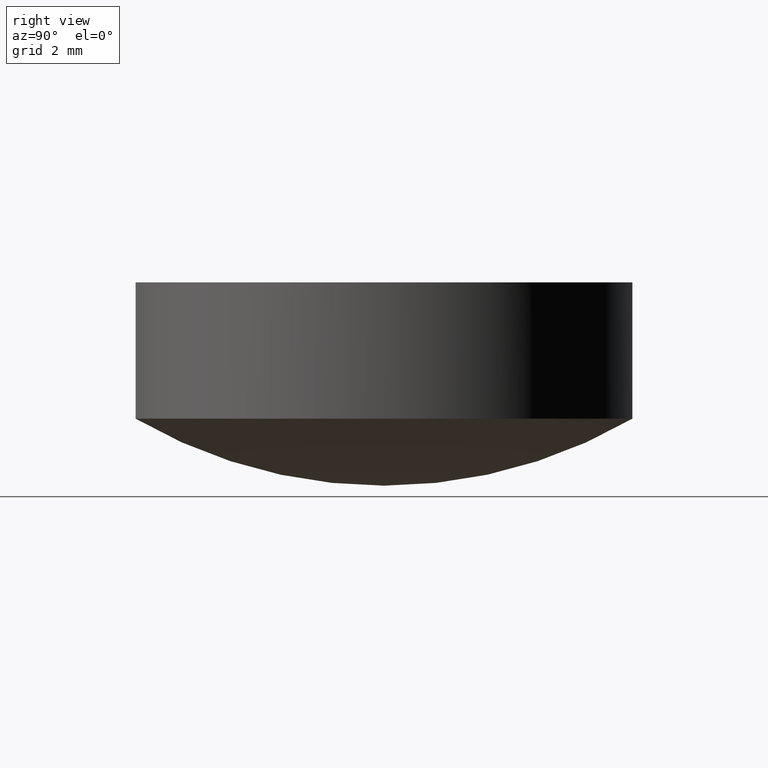
[diagram: clean part render]
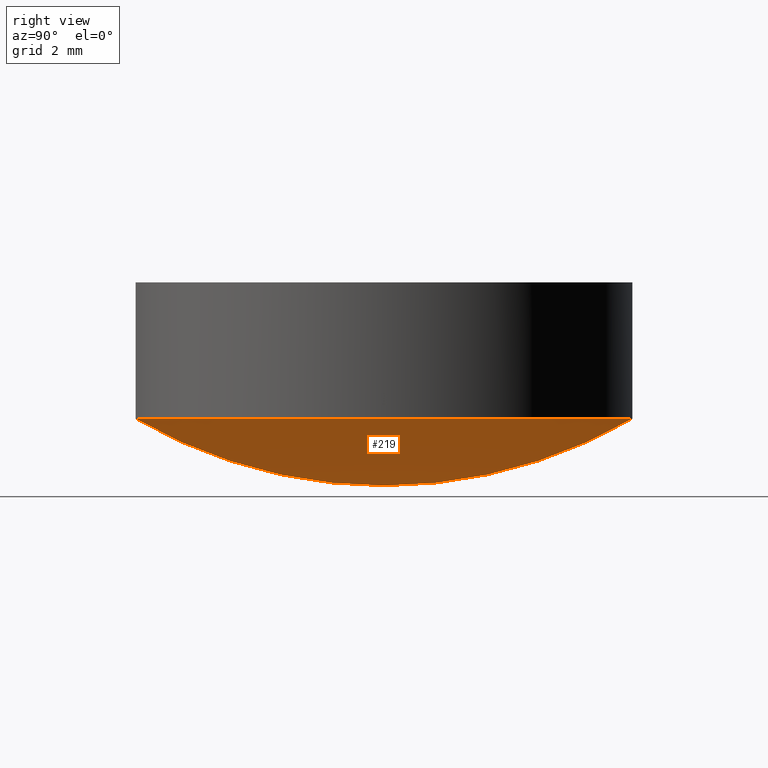
[diagram: same view with one face highlighted and labeled with its STEP entity id]
A machine part, right view. The second image highlights one B-rep face of the part: STEP entity #219.
In plain terms, the highlighted spherical surface has radius 12.63 mm.
Its self-contained STEP definition (entity closure, byte-faithful):
#29 = DIRECTION ( 'NONE',  ( 0.0000000000000000000, 0.0000000000000000000, 1.000000000000000000 ) ) ;
#30 = DIRECTION ( 'NONE',  ( -1.000000000000000000, 0.0000000000000000000, 0.0000000000000000000 ) ) ;
#31 = CARTESIAN_POINT ( 'NONE',  ( 0.0000000000000000000, 0.0000000000000000000, 11.63000000000000100 ) ) ;
#32 = DIRECTION ( 'NONE',  ( 1.000000000000000000, -1.224606353822377300E-016, -2.249491082733206400E-032 ) ) ;
#33 = AXIS2_PLACEMENT_3D ( 'NONE', #39, #32, #36 ) ;
#34 = CIRCLE ( 'NONE', #33, 12.63000000000000100 ) ;
#36 = DIRECTION ( 'NONE',  ( 1.224606353822377300E-016, 1.000000000000000000, 0.0000000000000000000 ) ) ;
#39 = CARTESIAN_POINT ( 'NONE',  ( 0.0000000000000000000, 0.0000000000000000000, 11.63000000000000100 ) ) ;
#41 = AXIS2_PLACEMENT_3D ( 'NONE', #31, #30, #29 ) ;
#42 = CIRCLE ( 'NONE', #41, 12.63000000000000300 ) ;
#43 = CARTESIAN_POINT ( 'NONE',  ( 0.0000000000000000000, 1.546677824877662800E-015, -0.9999999999999991100 ) ) ;
#75 = DIRECTION ( 'NONE',  ( 0.0000000000000000000, -1.000000000000000000, -1.373494438619799700E-016 ) ) ;
#76 = DIRECTION ( 'NONE',  ( 1.000000000000000000, 0.0000000000000000000, 0.0000000000000000000 ) ) ;
#77 = CARTESIAN_POINT ( 'NONE',  ( 0.0000000000000000000, 0.0000000000000000000, 11.63000000000000100 ) ) ;
#78 = AXIS2_PLACEMENT_3D ( 'NONE', #77, #76, #75 ) ;
#79 = SPHERICAL_SURFACE ( 'NONE', #78, 12.63000000000000100 ) ;
#80 = FACE_OUTER_BOUND ( 'NONE', #220, .T. ) ;
#84 = DIRECTION ( 'NONE',  ( 0.0000000000000000000, -1.836909530733566100E-016, 1.000000000000000000 ) ) ;
#85 = CARTESIAN_POINT ( 'NONE',  ( 0.0000000000000000000, 5.283296928876126500E-017, 0.7123812120041507200 ) ) ;
#88 = DIRECTION ( 'NONE',  ( 0.0000000000000000000, -1.000000000000000000, -1.878145495644179600E-016 ) ) ;
#168 = CARTESIAN_POINT ( 'NONE',  ( 0.0000000000000000000, -6.350000000000001400, 0.7123812120041489400 ) ) ;
#171 = AXIS2_PLACEMENT_3D ( 'NONE', #85, #84, #88 ) ;
#172 = CIRCLE ( 'NONE', #171, 6.350000000000004100 ) ;
#177 = VERTEX_POINT ( 'NONE', #178 ) ;
#178 = CARTESIAN_POINT ( 'NONE',  ( 7.776250346772096400E-016, 6.350000000000003200, 0.7123812120041527200 ) ) ;
#193 = EDGE_CURVE ( 'NONE', #194, #227, #42, .T. ) ;
#194 = VERTEX_POINT ( 'NONE', #43 ) ;
#195 = ORIENTED_EDGE ( 'NONE', *, *, #196, .T. ) ;
#196 = EDGE_CURVE ( 'NONE', #194, #177, #34, .T. ) ;
#197 = ORIENTED_EDGE ( 'NONE', *, *, #226, .F. ) ;
#219 = ADVANCED_FACE ( 'NONE', ( #80 ), #79, .T. ) ;
#220 = EDGE_LOOP ( 'NONE', ( #221, #195, #197 ) ) ;
#221 = ORIENTED_EDGE ( 'NONE', *, *, #193, .F. ) ;
#226 = EDGE_CURVE ( 'NONE', #227, #177, #172, .T. ) ;
#227 = VERTEX_POINT ( 'NONE', #168 ) ;